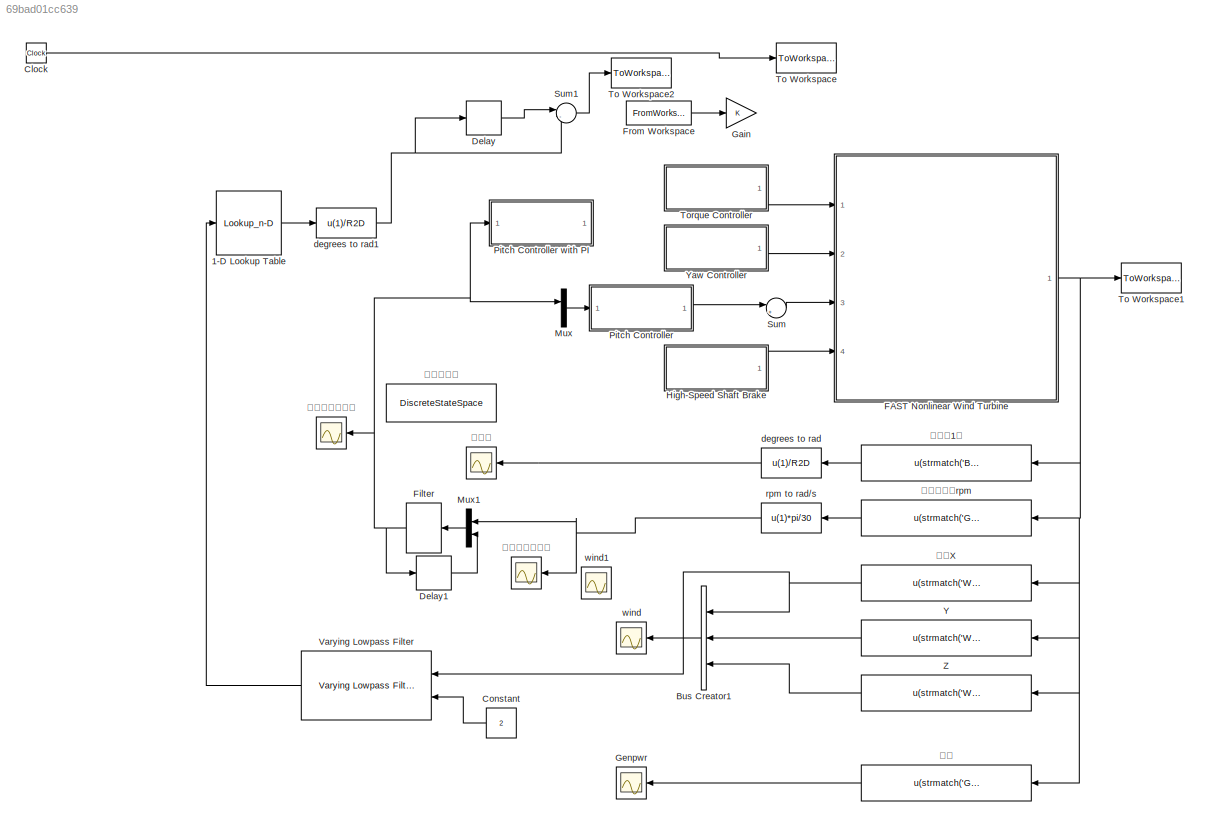
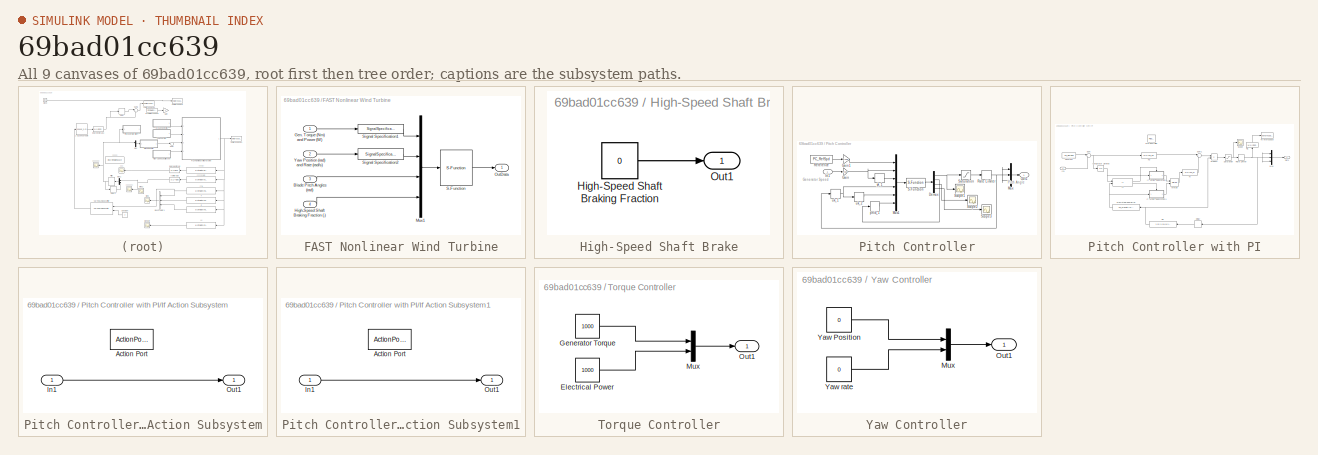
[diagram: thumbnail index - all 9 canvases of the model, root first then tree order]
MODEL slx_69bad01cc639
KIND model
CONFIG AbsTol = auto
CONFIG EnableMultiTasking = off
CONFIG FixedStep = 0.625
CONFIG MaxStep = auto
CONFIG MinStep = auto
CONFIG RelTol = 1e-3
CONFIG SampleTimeConstraint = Unconstrained
CONFIG Solver = ode23tb
CONFIG SolverName = ode23tb
CONFIG StartTime = 0.0
CONFIG StopTime = 10.0
BLOCK [Lookup_n-D] 1-D Lookup Table
  BreakpointsForDimension1 = [11.4,12,13,14,15,16,17,18,19,20,21,22,23,24,25]
  ExtrapMethod = Clip
  InternalRulePriority = Speed
  InterpMethod = Cubic spline
  LookupTableObject = wind_deg
  NumberOfTableDimensions = 1
  OutMax = [90]
  OutMin = [0]
  Ports = [1, 1]
  RndMeth = Simplest
  Table = [0,2.55,5.65,7.85,9.69,11.35,12.86,14.27,15.63,16.96,18.23,19.46,20.65,21.8,22.92]
BLOCK [BusCreator] Bus Creator1
  DisplayOption = bar
  InheritFromInputs = on
  Inputs = 3
  Ports = [3, 1]
BLOCK [Clock] Clock
BLOCK [Constant] Constant
  Value = 2
BLOCK [Delay] Delay
  DelayLength = 1
  InputPortMap = u0
  Ports = [1, 1]
BLOCK [Delay] Delay1
  DelayLength = 1
  InputPortMap = u0
  Ports = [1, 1]
BLOCK [SubSystem] FAST Nonlinear Wind Turbine
  Ports = [4, 1]
  RequestExecContextInheritance = off
BLOCK [Inport] FAST Nonlinear Wind Turbine/Blade Pitch Angles (rad)
  IconDisplay = Port number
  Port = 3
BLOCK [Inport] FAST Nonlinear Wind Turbine/Gen. Torque (Nm) and Power (W)
  IconDisplay = Port number
BLOCK [Inport] FAST Nonlinear Wind Turbine/High-Speed Shaft Braking Fraction (-)
  IconDisplay = Port number
  Port = 4
BLOCK [Mux] FAST Nonlinear Wind Turbine/Mux1
  DisplayOption = bar
  Ports = [4, 1]
BLOCK [Outport] FAST Nonlinear Wind Turbine/OutData
  IconDisplay = Port number
BLOCK [S-Function] FAST Nonlinear Wind Turbine/S-Function
  EnableBusSupport = off
  FunctionName = FAST_SFunc
  Parameters = FAST_InputFileName, TMax, 0
  Ports = [1, 1]
  SFcnIsStateOwnerBlock = off
  SFunctionDeploymentMode = off
BLOCK [SignalSpecification] FAST Nonlinear Wind Turbine/Signal Specification1
  Dimensions = 2
  OutDataTypeStr = double
  SignalType = real
BLOCK [SignalSpecification] FAST Nonlinear Wind Turbine/Signal Specification2
  Dimensions = 2
  OutDataTypeStr = double
  SignalType = real
BLOCK [Inport] FAST Nonlinear Wind Turbine/Yaw Position (rad) and Rate (rad//s)
  IconDisplay = Port number
  Port = 2
BLOCK [S-Function] Filter
  EnableBusSupport = off
  FunctionName = myfilter
  Ports = [1, 1]
  SFcnIsStateOwnerBlock = off
  SFunctionDeploymentMode = off
BLOCK [FromWorkspace] From Workspace
  Commented = on
  VariableName = wind
  ZeroCross = on
BLOCK [Gain] Gain
  OutDataTypeStr = Inherit: Inherit via internal rule
  ParamDataTypeStr = Inherit: Inherit via internal rule
  SaturateOnIntegerOverflow = off
BLOCK [Scope] Genpwr
  Commented = on
  Floating = off
  NumInputPorts = 1
  Ports = [1]
  ScopeSpecificationString = Simulink.scopes.TimeScopeBlockCfg('CurrentConfiguration', extmgr.ConfigurationSet(extmgr.Configuration('Core','General UI',true),extmgr.Configuration('Core','Source UI',true),extmgr.Configuration('Sources','WiredSimulink',true,'DataLoggingVariableName','ScopeData3'),extmgr.Configuration('Visuals','Time Domain',true,'SerializedDisplays',{struct('MinYLimReal','1069.19089','MaxYLimReal','5771.69363',...<+1456ch>
BLOCK [SubSystem] High-Speed Shaft Brake
  Ports = [0, 1]
  RequestExecContextInheritance = off
BLOCK [Constant] High-Speed Shaft Brake/High-Speed Shaft Braking Fraction
  Value = 0
BLOCK [Outport] High-Speed Shaft Brake/Out1
  IconDisplay = Port number
BLOCK [Mux] Mux
  DisplayOption = bar
  Inputs = 2
  Ports = [2, 1]
BLOCK [Mux] Mux1
  DisplayOption = bar
  Inputs = 2
  Ports = [2, 1]
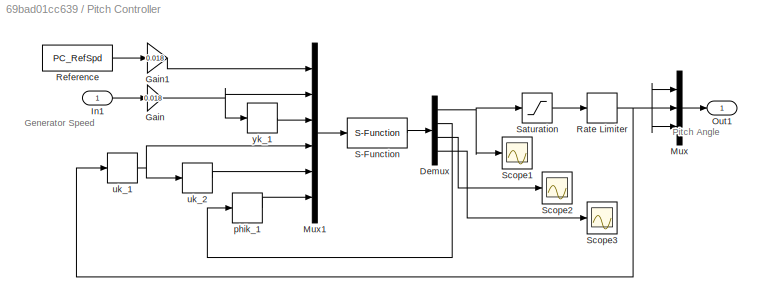
BLOCK [SubSystem] Pitch Controller
  Ports = [1, 1]
  RequestExecContextInheritance = off
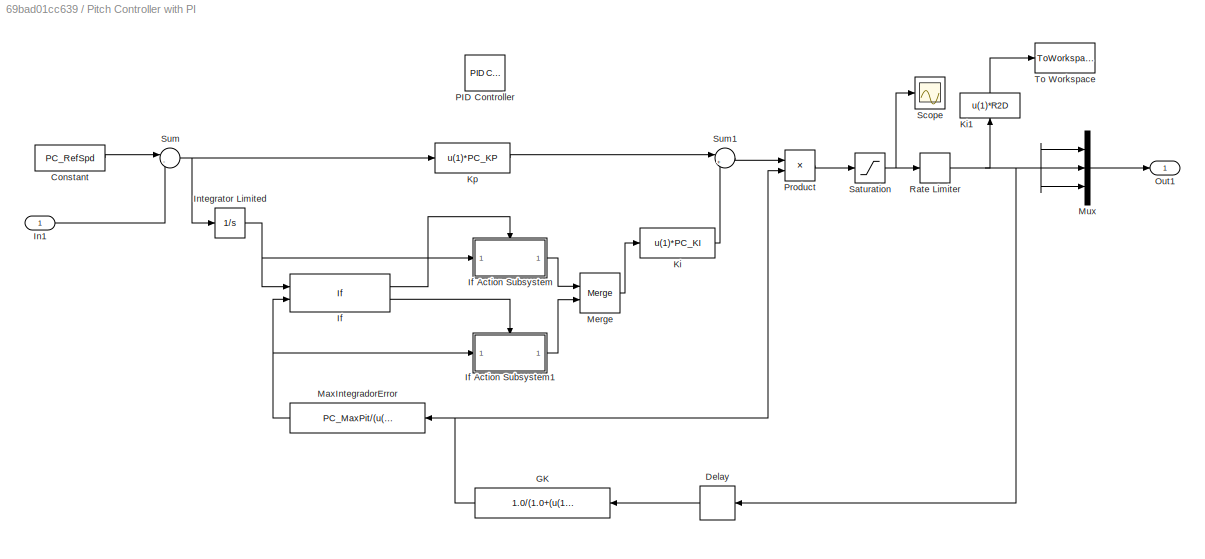
BLOCK [SubSystem] Pitch Controller with PI
  Ports = [1, 1]
  RequestExecContextInheritance = off
BLOCK [Constant] Pitch Controller with PI/Constant
  Value = PC_RefSpd
BLOCK [Delay] Pitch Controller with PI/Delay
  DelayLength = 1
  InitialCondition = 0
  InputPortMap = u0
  Ports = [1, 1]
BLOCK [Fcn] Pitch Controller with PI/GK
  Expr = 1.0/(1.0+(u(1)/PC_KK))
BLOCK [If] Pitch Controller with PI/If
  IfExpression = u1 <= u2
  NumInputs = 2
  Ports = [2, 2]
BLOCK [SubSystem] Pitch Controller with PI/If Action Subsystem
  Ports = [1, 1, 0, 0, 0, 0, 0, 1]
  RequestExecContextInheritance = off
  TreatAsAtomicUnit = on
BLOCK [ActionPort] Pitch Controller with PI/If Action Subsystem/Action Port
  ActionType = then
BLOCK [Inport] Pitch Controller with PI/If Action Subsystem/In1
  IconDisplay = Port number
BLOCK [Outport] Pitch Controller with PI/If Action Subsystem/Out1
  IconDisplay = Port number
BLOCK [SubSystem] Pitch Controller with PI/If Action Subsystem1
  Ports = [1, 1, 0, 0, 0, 0, 0, 1]
  RequestExecContextInheritance = off
  TreatAsAtomicUnit = on
BLOCK [ActionPort] Pitch Controller with PI/If Action Subsystem1/Action Port
  ActionType = else
BLOCK [Inport] Pitch Controller with PI/If Action Subsystem1/In1
  IconDisplay = Port number
BLOCK [Outport] Pitch Controller with PI/If Action Subsystem1/Out1
  IconDisplay = Port number
BLOCK [Inport] Pitch Controller with PI/In1
  IconDisplay = Port number
BLOCK [Integrator] Pitch Controller with PI/Integrator Limited
  IgnoreLimit = on
  LimitOutput = on
  LowerSaturationLimit = 0
  Ports = [1, 1]
  UpperSaturationLimit = 1.57079/PC_KI
BLOCK [Fcn] Pitch Controller with PI/Ki
  Expr = u(1)*PC_KI
BLOCK [Fcn] Pitch Controller with PI/Ki1
  Expr = u(1)*R2D
BLOCK [Fcn] Pitch Controller with PI/Kp
  Expr = u(1)*PC_KP
BLOCK [Fcn] Pitch Controller with PI/MaxIntegradorError
  Expr = PC_MaxPit/(u(1)*PC_KI)
BLOCK [Merge] Pitch Controller with PI/Merge
  Ports = [2, 1]
BLOCK [Mux] Pitch Controller with PI/Mux
  DisplayOption = bar
  Inputs = 3
  Ports = [3, 1]
BLOCK [Outport] Pitch Controller with PI/Out1
  IconDisplay = Port number
BLOCK [Reference] Pitch Controller with PI/PID Controller  REF=simulink/Continuous/PID Controller
  Ports = [1, 1]
  SourceBlock = simulink/Continuous/PID Controller
  SourceProductBaseCode = SL
  SourceProductName = Simulink
  SourceType = PID 1dof
BLOCK [Product] Pitch Controller with PI/Product
  InputSameDT = off
  OutDataTypeStr = Inherit: Inherit via internal rule
  Ports = [2, 1]
  RndMeth = Floor
  SaturateOnIntegerOverflow = off
BLOCK [RateLimiter] Pitch Controller with PI/Rate Limiter
  FallingSlewLimit = -0.1396263
  RisingSlewLimit = 0.1396263
  SampleTimeMode = inherited
BLOCK [Saturate] Pitch Controller with PI/Saturation
  InputPortMap = u0
  LowerLimit = 0
  Ports = [1, 1]
  UpperLimit = 1.5708
BLOCK [Scope] Pitch Controller with PI/Scope
  Floating = off
  NumInputPorts = 1
  Ports = [1]
  ScopeSpecificationString = Simulink.scopes.TimeScopeBlockCfg('CurrentConfiguration', extmgr.ConfigurationSet(extmgr.Configuration('Core','General UI',true),extmgr.Configuration('Core','Source UI',true),extmgr.Configuration('Sources','WiredSimulink',true,'DataLoggingVariableName','ScopeData1'),extmgr.Configuration('Visuals','Time Domain',true,'SerializedDisplays',{struct('MinYLimReal','-0.03833','MaxYLimReal','0.34497','YLab...<+1369ch>
BLOCK [Sum] Pitch Controller with PI/Sum
  IconShape = round
  InputSameDT = off
  Inputs = |-+
  OutDataTypeStr = Inherit: Inherit via internal rule
  Ports = [2, 1]
  SaturateOnIntegerOverflow = off
BLOCK [Sum] Pitch Controller with PI/Sum1
  IconShape = round
  InputSameDT = off
  Inputs = |++
  OutDataTypeStr = Inherit: Inherit via internal rule
  Ports = [2, 1]
  SaturateOnIntegerOverflow = off
BLOCK [ToWorkspace] Pitch Controller with PI/To Workspace
  FixptAsFi = on
  MaxDataPoints = inf
  Ports = [1]
  SampleTime = -1
  Save2DSignal = 3-D array (concatenate along third dimension)
  SaveFormat = Timeseries
  VariableName = Teste1
BLOCK [Demux] Pitch Controller/Demux
  DisplayOption = bar
  Ports = [1, 4]
BLOCK [Gain] Pitch Controller/Gain
  Gain = 0.018
  OutDataTypeStr = Inherit: Inherit via internal rule
  ParamDataTypeStr = Inherit: Inherit via internal rule
  SaturateOnIntegerOverflow = off
BLOCK [Gain] Pitch Controller/Gain1
  Gain = 0.018
  OutDataTypeStr = Inherit: Inherit via internal rule
  ParamDataTypeStr = Inherit: Inherit via internal rule
  SaturateOnIntegerOverflow = off
BLOCK [Inport] Pitch Controller/In1
  IconDisplay = Port number
BLOCK [Mux] Pitch Controller/Mux
  DisplayOption = bar
  Inputs = 3
  Ports = [3, 1]
BLOCK [Mux] Pitch Controller/Mux1
  DisplayOption = bar
  Inputs = 6
  Ports = [6, 1]
BLOCK [Outport] Pitch Controller/Out1
  IconDisplay = Port number
BLOCK [RateLimiter] Pitch Controller/Rate Limiter
  FallingSlewLimit = -0.1396263
  InitialCondition = initalAgl
  RisingSlewLimit = 0.1396263
  SampleTimeMode = inherited
BLOCK [Constant] Pitch Controller/Reference
  Value = PC_RefSpd
BLOCK [S-Function] Pitch Controller/S-Function
  EnableBusSupport = off
  FunctionName = CFDL_MFAC
  Ports = [1, 1]
  SFcnIsStateOwnerBlock = off
  SFunctionDeploymentMode = off
BLOCK [Saturate] Pitch Controller/Saturation
  InputPortMap = u0
  LowerLimit = 0
  Ports = [1, 1]
  UpperLimit = 1.5708
BLOCK [Scope] Pitch Controller/Scope1
  Floating = off
  NumInputPorts = 1
  Ports = [1]
  ScopeSpecificationString = Simulink.scopes.TimeScopeBlockCfg('CurrentConfiguration', extmgr.ConfigurationSet(extmgr.Configuration('Core','General UI',true),extmgr.Configuration('Core','Source UI',true),extmgr.Configuration('Sources','WiredSimulink',true,'DataLoggingVariableName','ScopeData1'),extmgr.Configuration('Visuals','Time Domain',true,'SerializedDisplays',{struct('MinYLimReal','-0.05296','MaxYLimReal','0.1821','YLabe...<+1410ch>
BLOCK [Scope] Pitch Controller/Scope2
  Floating = off
  NumInputPorts = 1
  Ports = [1]
  ScopeSpecificationString = Simulink.scopes.TimeScopeBlockCfg('CurrentConfiguration', extmgr.ConfigurationSet(extmgr.Configuration('Core','General UI',true),extmgr.Configuration('Core','Source UI',true),extmgr.Configuration('Sources','WiredSimulink',true,'DataLoggingVariableName','ScopeData1'),extmgr.Configuration('Visuals','Time Domain',true,'SerializedDisplays',{struct('MinYLimReal','-34.75395','MaxYLimReal','30.04155','YL...<+1445ch>
BLOCK [Scope] Pitch Controller/Scope3
  Floating = off
  NumInputPorts = 1
  Ports = [1]
  ScopeSpecificationString = Simulink.scopes.TimeScopeBlockCfg('CurrentConfiguration', extmgr.ConfigurationSet(extmgr.Configuration('Core','General UI',true),extmgr.Configuration('Core','Source UI',true),extmgr.Configuration('Sources','WiredSimulink',true,'DataLoggingVariableName','ScopeData1'),extmgr.Configuration('Visuals','Time Domain',true,'SerializedDisplays',{struct('MinYLimReal','-34.75395','MaxYLimReal','30.04155','YL...<+1445ch>
BLOCK [Memory] Pitch Controller/phik_1
  InitialCondition = -10
BLOCK [Memory] Pitch Controller/uk_1
  InitialCondition = initalAgl
BLOCK [Memory] Pitch Controller/uk_2
  InitialCondition = initalAgl
BLOCK [Memory] Pitch Controller/yk_1
  InitialCondition = 2.2
BLOCK [Sum] Sum
  IconShape = round
  InputSameDT = off
  Inputs = |++
  OutDataTypeStr = Inherit: Inherit via internal rule
  Ports = [2, 1]
  SaturateOnIntegerOverflow = off
BLOCK [Sum] Sum1
  IconShape = round
  InputSameDT = off
  Inputs = |-+
  OutDataTypeStr = Inherit: Inherit via internal rule
  Ports = [2, 1]
  SaturateOnIntegerOverflow = off
BLOCK [ToWorkspace] To Workspace
  MaxDataPoints = inf
  Ports = [1]
  SampleTime = -1
  VariableName = Time
BLOCK [ToWorkspace] To Workspace1
  MaxDataPoints = inf
  Ports = [1]
  SampleTime = -1
  VariableName = OutData
BLOCK [ToWorkspace] To Workspace2
  FixptAsFi = on
  MaxDataPoints = inf
  Ports = [1]
  SampleTime = -1
  Save2DSignal = 3-D array (concatenate along third dimension)
  SaveFormat = Timeseries
  VariableName = wind
BLOCK [SubSystem] Torque Controller
  Ports = [0, 1]
  RequestExecContextInheritance = off
BLOCK [Constant] Torque Controller/Electrical Power
  Value = 1000
BLOCK [Constant] Torque Controller/Generator Torque
  Value = 1000
BLOCK [Mux] Torque Controller/Mux
  DisplayOption = bar
  Inputs = 2
  Ports = [2, 1]
BLOCK [Outport] Torque Controller/Out1
  IconDisplay = Port number
BLOCK [Reference] Varying Lowpass Filter  REF=cstblocks/Linear Parameter Varying/Varying Lowpass Filter
  Ports = [2, 1]
  SourceBlock = cstblocks/Linear Parameter Varying/Varying Lowpass Filter
  SourceProductBaseCode = CT
  SourceProductName = Control System Toolbox
  SourceType = Varying Lowpass Filter
BLOCK [Fcn] Y
  Expr = u(strmatch('Wind1VelY',OutList))
BLOCK [SubSystem] Yaw Controller
  Ports = [0, 1]
  RequestExecContextInheritance = off
BLOCK [Mux] Yaw Controller/Mux
  DisplayOption = bar
  Inputs = 2
  Ports = [2, 1]
BLOCK [Outport] Yaw Controller/Out1
  IconDisplay = Port number
BLOCK [Constant] Yaw Controller/Yaw Position
  Value = 0
BLOCK [Constant] Yaw Controller/Yaw rate
  Value = 0
BLOCK [Fcn] Z
  Expr = u(strmatch('Wind1VelZ',OutList))
BLOCK [Fcn] degrees to rad
  Expr = u(1)/R2D
BLOCK [Fcn] degrees to rad1
  Expr = u(1)/R2D
BLOCK [Fcn] rpm to rad//s
  Expr = u(1)*pi/30
BLOCK [Scope] wind
  Commented = on
  Floating = off
  NumInputPorts = 1
  Ports = [1]
  ScopeSpecificationString = Simulink.scopes.TimeScopeBlockCfg('CurrentConfiguration', extmgr.ConfigurationSet(extmgr.Configuration('Core','General UI',true),extmgr.Configuration('Core','Source UI',true),extmgr.Configuration('Sources','WiredSimulink',true,'DataLoggingVariableName','ScopeData2'),extmgr.Configuration('Visuals','Time Domain',true,'SerializedDisplays',{struct('MinYLimReal','-1.875','MaxYLimReal','16.875','YLabelR...<+1388ch>
BLOCK [Scope] wind1
  Commented = on
  Floating = off
  NumInputPorts = 1
  Ports = [1]
  ScopeSpecificationString = Simulink.scopes.TimeScopeBlockCfg('CurrentConfiguration', extmgr.ConfigurationSet(extmgr.Configuration('Core','General UI',true),extmgr.Configuration('Core','Source UI',true),extmgr.Configuration('Sources','WiredSimulink',true,'DataLoggingVariableName','ScopeData5'),extmgr.Configuration('Visuals','Time Domain',true,'SerializedDisplays',{struct('MinYLimReal','5.00000','MaxYLimReal','25.00000','YLab...<+1433ch>
BLOCK [Fcn] 功率
  Expr = u(strmatch('GenPwr',OutList))
BLOCK [Scope] 原始发电机转速
  Commented = on
  Floating = off
  NumInputPorts = 1
  Ports = [1]
  ScopeSpecificationString = Simulink.scopes.TimeScopeBlockCfg('CurrentConfiguration', extmgr.ConfigurationSet(extmgr.Configuration('Core','General UI',true),extmgr.Configuration('Core','Source UI',true),extmgr.Configuration('Sources','WiredSimulink',true,'DataLoggingVariableName','ScopeData6'),extmgr.Configuration('Visuals','Time Domain',true,'SerializedDisplays',{struct('MinYLimReal','74.95324','MaxYLimReal','163.23624','YL...<+1434ch>
BLOCK [Fcn] 发电机转速rpm
  Expr = u(strmatch('GenSpeed',OutList))
BLOCK [Scope] 桨距角
  Commented = on
  Floating = off
  NumInputPorts = 1
  Ports = [1]
  ScopeSpecificationString = Simulink.scopes.TimeScopeBlockCfg('CurrentConfiguration', extmgr.ConfigurationSet(extmgr.Configuration('Core','General UI',true),extmgr.Configuration('Core','Source UI',true),extmgr.Configuration('Sources','WiredSimulink',true),extmgr.Configuration('Visuals','Time Domain',true,'SerializedDisplays',{struct('MinYLimReal','-0.03504','MaxYLimReal','0.31535','YLabelReal','','MinYLimMag','0.00000','MaxY...<+1405ch>
BLOCK [Fcn] 桨距角1值
  Expr = u(strmatch('BldPitch1',OutList))
BLOCK [Scope] 滤波发电机转速
  Commented = on
  Floating = off
  NumInputPorts = 1
  Ports = [1]
  ScopeSpecificationString = Simulink.scopes.TimeScopeBlockCfg('CurrentConfiguration', extmgr.ConfigurationSet(extmgr.Configuration('Core','General UI',true),extmgr.Configuration('Core','Source UI',true),extmgr.Configuration('Sources','WiredSimulink',true,'DataLoggingVariableName','ScopeData1'),extmgr.Configuration('Visuals','Time Domain',true,'SerializedDisplays',{struct('MinYLimReal','-22.31646','MaxYLimReal','212.95128','Y...<+1450ch>
BLOCK [DiscreteStateSpace] 转速滤波器
  A = exp(-(0.0063)*CornerFreq)
  B = 1-exp(-0.0063*CornerFreq)
  C = exp(-0.0063*CornerFreq)
  D = 1-exp(-0.0063*CornerFreq)
  SampleTime = -1
BLOCK [Fcn] 风速X
  Expr = u(strmatch('Wind1VelX',OutList))
ANNOTATION Pitch Controller: Generator Speed
ANNOTATION Pitch Controller: Pitch Angle
LINE 1-D Lookup Table:1 -> degrees to rad1:1
LINE Bus Creator1:1 -> wind:1
LINE Clock:1 -> To Workspace:1
LINE Constant:1 -> Varying Lowpass Filter:2
LINE Delay1:1 -> Mux1:2
LINE Delay:1 -> Sum1:1
LINE FAST Nonlinear Wind Turbine/Blade Pitch Angles (rad):1 -> FAST Nonlinear Wind Turbine/Mux1:3
LINE FAST Nonlinear Wind Turbine/Gen. Torque (Nm) and Power (W):1 -> FAST Nonlinear Wind Turbine/Signal Specification1:1
LINE FAST Nonlinear Wind Turbine/High-Speed Shaft Braking Fraction (-):1 -> FAST Nonlinear Wind Turbine/Mux1:4
LINE FAST Nonlinear Wind Turbine/Mux1:1 -> FAST Nonlinear Wind Turbine/S-Function:1
LINE FAST Nonlinear Wind Turbine/S-Function:1 -> FAST Nonlinear Wind Turbine/OutData:1
LINE FAST Nonlinear Wind Turbine/Signal Specification1:1 -> FAST Nonlinear Wind Turbine/Mux1:1
LINE FAST Nonlinear Wind Turbine/Signal Specification2:1 -> FAST Nonlinear Wind Turbine/Mux1:2
LINE FAST Nonlinear Wind Turbine/Yaw Position (rad) and Rate (rad//s):1 -> FAST Nonlinear Wind Turbine/Signal Specification2:1
NET FAST Nonlinear Wind Turbine:1 -> To Workspace1:1, Y:1, Z:1, 功率:1, 发电机转速rpm:1, 桨距角1值:1, 风速X:1
NET Filter:1 -> Delay1:1, Mux:1, Pitch Controller with PI:1, 滤波发电机转速:1
LINE From Workspace:1 -> Gain:1
LINE High-Speed Shaft Brake/High-Speed Shaft Braking Fraction:1 -> High-Speed Shaft Brake/Out1:1
LINE High-Speed Shaft Brake:1 -> FAST Nonlinear Wind Turbine:4
LINE Mux1:1 -> Filter:1
LINE Mux:1 -> Pitch Controller:1
LINE Pitch Controller with PI/Constant:1 -> Pitch Controller with PI/Sum:1
LINE Pitch Controller with PI/Delay:1 -> Pitch Controller with PI/GK:1
NET Pitch Controller with PI/GK:1 -> Pitch Controller with PI/MaxIntegradorError:1, Pitch Controller with PI/Product:2
LINE Pitch Controller with PI/If Action Subsystem/In1:1 -> Pitch Controller with PI/If Action Subsystem/Out1:1
LINE Pitch Controller with PI/If Action Subsystem1/In1:1 -> Pitch Controller with PI/If Action Subsystem1/Out1:1
LINE Pitch Controller with PI/If Action Subsystem1:1 -> Pitch Controller with PI/Merge:2
LINE Pitch Controller with PI/If Action Subsystem:1 -> Pitch Controller with PI/Merge:1
LINE Pitch Controller with PI/If:1 -> Pitch Controller with PI/If Action Subsystem:ifaction
LINE Pitch Controller with PI/If:2 -> Pitch Controller with PI/If Action Subsystem1:ifaction
LINE Pitch Controller with PI/In1:1 -> Pitch Controller with PI/Sum:2
NET Pitch Controller with PI/Integrator Limited:1 -> Pitch Controller with PI/If Action Subsystem:1, Pitch Controller with PI/If:1
LINE Pitch Controller with PI/Ki1:1 -> Pitch Controller with PI/To Workspace:1
LINE Pitch Controller with PI/Ki:1 -> Pitch Controller with PI/Sum1:2
LINE Pitch Controller with PI/Kp:1 -> Pitch Controller with PI/Sum1:1
NET Pitch Controller with PI/MaxIntegradorError:1 -> Pitch Controller with PI/If Action Subsystem1:1, Pitch Controller with PI/If:2
LINE Pitch Controller with PI/Merge:1 -> Pitch Controller with PI/Ki:1
LINE Pitch Controller with PI/Mux:1 -> Pitch Controller with PI/Out1:1
LINE Pitch Controller with PI/Product:1 -> Pitch Controller with PI/Saturation:1
NET Pitch Controller with PI/Rate Limiter:1 -> Pitch Controller with PI/Delay:1, Pitch Controller with PI/Ki1:1, Pitch Controller with PI/Mux:1, Pitch Controller with PI/Mux:2, Pitch Controller with PI/Mux:3
NET Pitch Controller with PI/Saturation:1 -> Pitch Controller with PI/Rate Limiter:1, Pitch Controller with PI/Scope:1
LINE Pitch Controller with PI/Sum1:1 -> Pitch Controller with PI/Product:1
NET Pitch Controller with PI/Sum:1 -> Pitch Controller with PI/Integrator Limited:1, Pitch Controller with PI/Kp:1
NET Pitch Controller/Demux:1 -> Pitch Controller/Saturation:1, Pitch Controller/Scope1:1
LINE Pitch Controller/Demux:2 -> Pitch Controller/phik_1:1
LINE Pitch Controller/Demux:3 -> Pitch Controller/Scope2:1
LINE Pitch Controller/Demux:4 -> Pitch Controller/Scope3:1
LINE Pitch Controller/Gain1:1 -> Pitch Controller/Mux1:1
NET Pitch Controller/Gain:1 -> Pitch Controller/Mux1:2, Pitch Controller/yk_1:1
LINE Pitch Controller/In1:1 -> Pitch Controller/Gain:1
LINE Pitch Controller/Mux1:1 -> Pitch Controller/S-Function:1
LINE Pitch Controller/Mux:1 -> Pitch Controller/Out1:1
NET Pitch Controller/Rate Limiter:1 -> Pitch Controller/Mux:1, Pitch Controller/Mux:2, Pitch Controller/Mux:3, Pitch Controller/uk_1:1
LINE Pitch Controller/Reference:1 -> Pitch Controller/Gain1:1
LINE Pitch Controller/S-Function:1 -> Pitch Controller/Demux:1
LINE Pitch Controller/Saturation:1 -> Pitch Controller/Rate Limiter:1
LINE Pitch Controller/phik_1:1 -> Pitch Controller/Mux1:6
NET Pitch Controller/uk_1:1 -> Pitch Controller/Mux1:4, Pitch Controller/uk_2:1
LINE Pitch Controller/uk_2:1 -> Pitch Controller/Mux1:5
LINE Pitch Controller/yk_1:1 -> Pitch Controller/Mux1:3
LINE Pitch Controller:1 -> Sum:1
LINE Sum1:1 -> To Workspace2:1
LINE Sum:1 -> FAST Nonlinear Wind Turbine:3
LINE Torque Controller/Electrical Power:1 -> Torque Controller/Mux:2
LINE Torque Controller/Generator Torque:1 -> Torque Controller/Mux:1
LINE Torque Controller/Mux:1 -> Torque Controller/Out1:1
LINE Torque Controller:1 -> FAST Nonlinear Wind Turbine:1
LINE Varying Lowpass Filter:1 -> 1-D Lookup Table:1
LINE Y:1 -> Bus Creator1:2
LINE Yaw Controller/Mux:1 -> Yaw Controller/Out1:1
LINE Yaw Controller/Yaw Position:1 -> Yaw Controller/Mux:1
LINE Yaw Controller/Yaw rate:1 -> Yaw Controller/Mux:2
LINE Yaw Controller:1 -> FAST Nonlinear Wind Turbine:2
LINE Z:1 -> Bus Creator1:3
NET degrees to rad1:1 -> Delay:1, Sum1:2
LINE degrees to rad:1 -> 桨距角:1
NET rpm to rad//s:1 -> Mux1:1, 原始发电机转速:1
LINE 功率:1 -> Genpwr:1
LINE 发电机转速rpm:1 -> rpm to rad//s:1
LINE 桨距角1值:1 -> degrees to rad:1
NET 风速X:1 -> Bus Creator1:1, Varying Lowpass Filter:1
note: NET lines group one-source signal fan-out (src -> all destinations, sorted); 1:1 wires keep LINE
